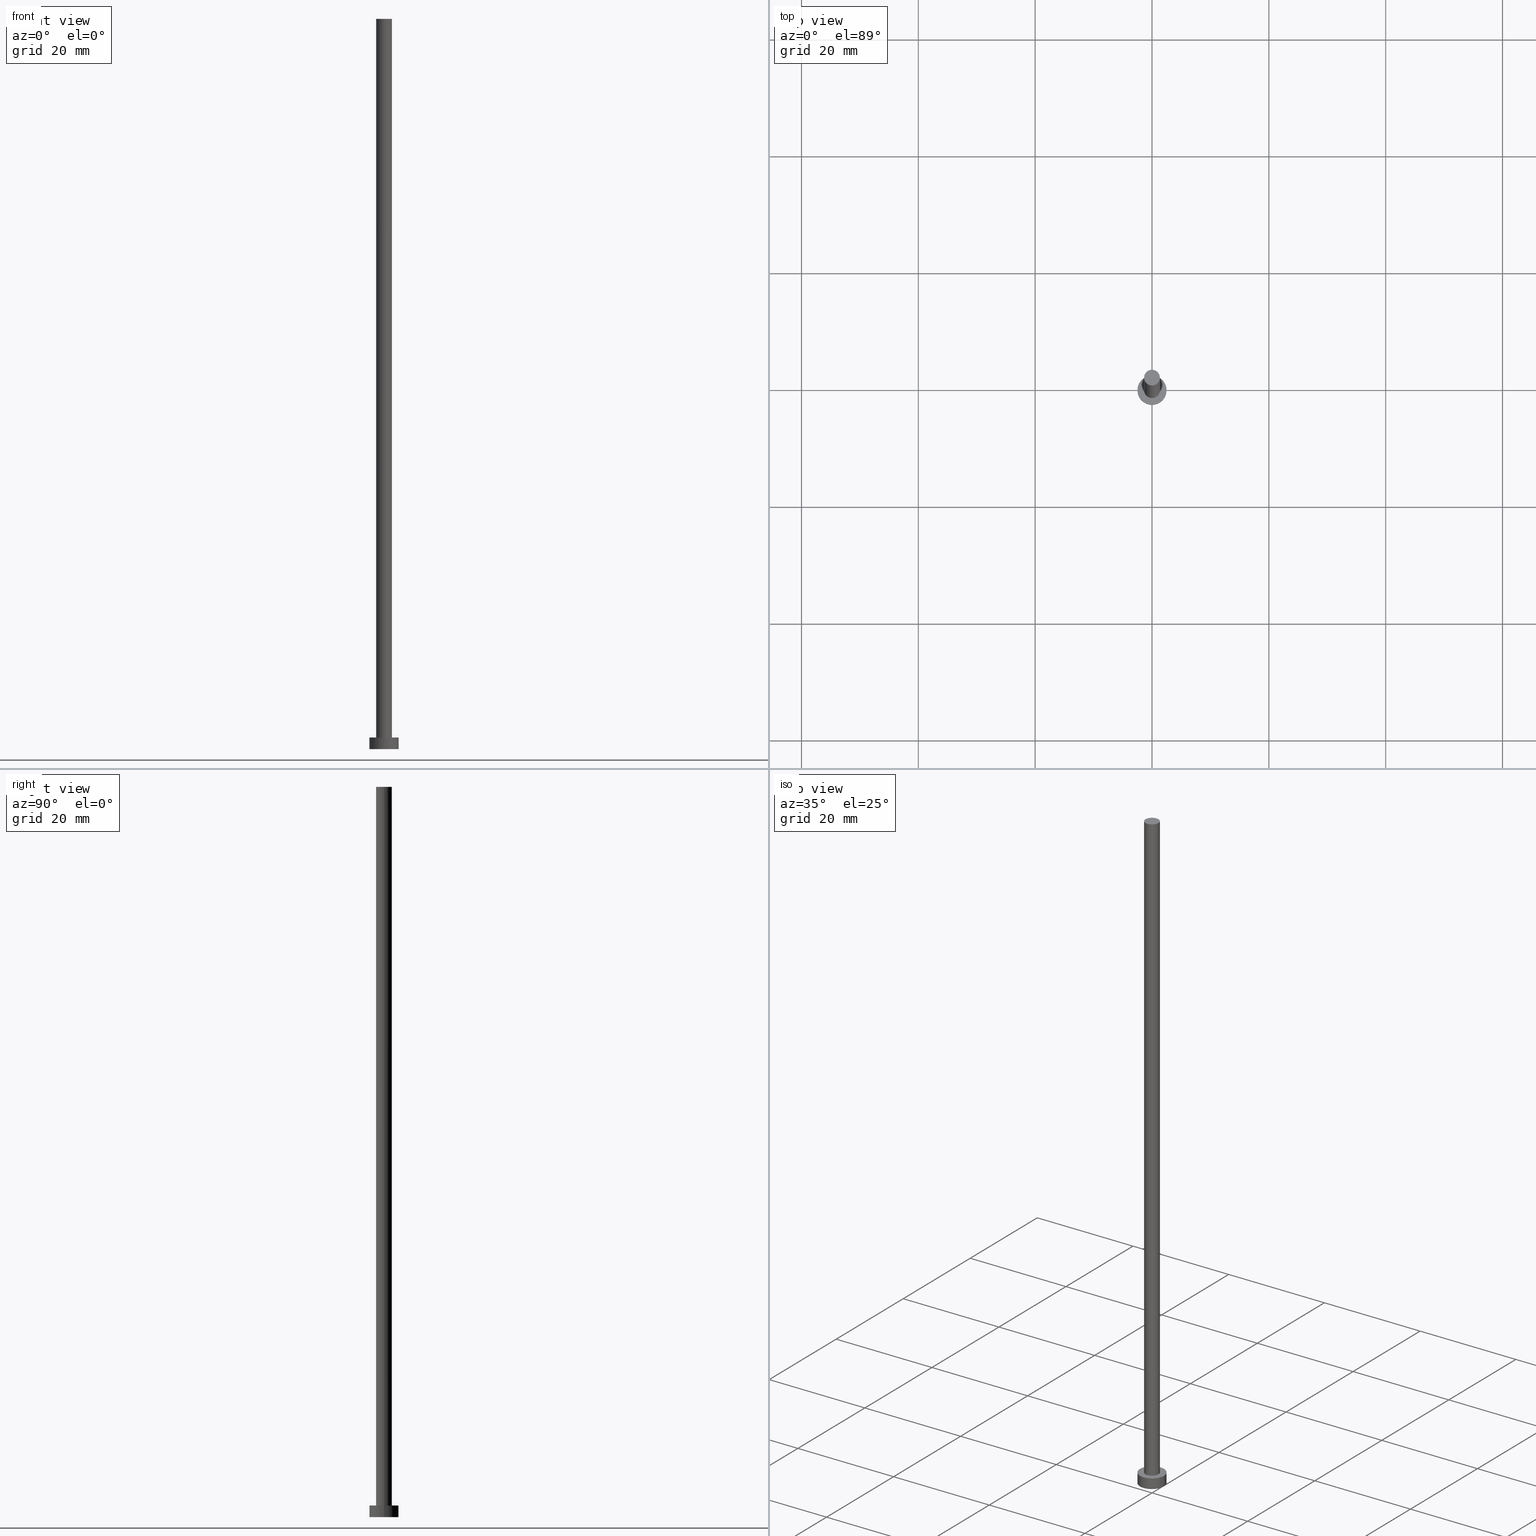
[diagram: canonical four-view strip — front | top / right | iso, engineering-drawing reading convention]
A machine part, canonical four-view strip (front | top / right | iso — engineering-drawing reading convention). The complete STEP part file that produces these views, byte-faithful:
ISO-10303-21;
HEADER;
FILE_DESCRIPTION (( 'STEP AP203' ),
    '1' );
FILE_NAME ('ba89.STEP',
    '2026-02-06T12:31:27',
    ( '' ),
    ( '' ),
    'SwSTEP 2.0',
    'SolidWorks 2019',
    '' );
FILE_SCHEMA (( 'CONFIG_CONTROL_DESIGN' ));
ENDSEC;

DATA;
#1 = VERTEX_POINT ( 'NONE', #43 ) ;
#2 = PRODUCT_DEFINITION_SHAPE ( 'NONE', 'NONE',  #32 ) ;
#3 = PERSON_AND_ORGANIZATION ( #208, #142 ) ;
#4 = CC_DESIGN_PERSON_AND_ORGANIZATION_ASSIGNMENT ( #198, #155, ( #232 ) ) ;
#5 = CYLINDRICAL_SURFACE ( 'NONE', #91, 2.500000000000000000 ) ;
#6 = LOCAL_TIME ( 13, 31, 27.00000000000000000, #52 ) ;
#7 = ORIENTED_EDGE ( 'NONE', *, *, #84, .F. ) ;
#8 = DIRECTION ( 'NONE',  ( 1.000000000000000000, 0.000000000000000000, -0.000000000000000000 ) ) ;
#9 = ORIENTED_EDGE ( 'NONE', *, *, #100, .F. ) ;
#10 = ADVANCED_FACE ( 'NONE', ( #240 ), #44, .F. ) ;
#11 = DIRECTION ( 'NONE',  ( -0.000000000000000000, -0.000000000000000000, -1.000000000000000000 ) ) ;
#12 = APPROVAL_DATE_TIME ( #90, #157 ) ;
#13 = MECHANICAL_CONTEXT ( 'NONE', #128, 'mechanical' ) ;
#14 = DIRECTION ( 'NONE',  ( -1.000000000000000000, 0.000000000000000000, 0.000000000000000000 ) ) ;
#15 =( LENGTH_UNIT ( ) NAMED_UNIT ( * ) SI_UNIT ( .MILLI., .METRE. ) );
#16 = DIRECTION ( 'NONE',  ( -1.000000000000000000, 0.000000000000000000, 0.000000000000000000 ) ) ;
#17 = FACE_OUTER_BOUND ( 'NONE', #89, .T. ) ;
#18 = CARTESIAN_POINT ( 'NONE',  ( 0.000000000000000000, 0.000000000000000000, 2.000000000000000000 ) ) ;
#19 = CARTESIAN_POINT ( 'NONE',  ( -2.500000000000000000, 0.000000000000000000, 0.000000000000000000 ) ) ;
#20 = MANIFOLD_SOLID_BREP ( 'P�idat vysunut�m3', #121 ) ;
#21 = PRODUCT ( 'ba89', 'ba89', '', ( #13 ) ) ;
#22 = EDGE_LOOP ( 'NONE', ( #63, #143 ) ) ;
#23 = AXIS2_PLACEMENT_3D ( 'NONE', #192, #116, #16 ) ;
#24 = CC_DESIGN_APPROVAL ( #117, ( #57 ) ) ;
#25 = DATE_AND_TIME ( #178, #47 ) ;
#26 = DIRECTION ( 'NONE',  ( 1.000000000000000000, 0.000000000000000000, 0.000000000000000000 ) ) ;
#27 = ORIENTED_EDGE ( 'NONE', *, *, #205, .F. ) ;
#28 = AXIS2_PLACEMENT_3D ( 'NONE', #58, #98, #163 ) ;
#29 = DIRECTION ( 'NONE',  ( 1.000000000000000000, 0.000000000000000000, 0.000000000000000000 ) ) ;
#30 = DIRECTION ( 'NONE',  ( -0.000000000000000000, -0.000000000000000000, -1.000000000000000000 ) ) ;
#31 = DIRECTION ( 'NONE',  ( 1.000000000000000000, 0.000000000000000000, 0.000000000000000000 ) ) ;
#32 = PRODUCT_DEFINITION ( 'NEZN�M�', '', #57, #60 ) ;
#33 = PERSON_AND_ORGANIZATION ( #208, #142 ) ;
#34 = FACE_BOUND ( 'NONE', #213, .T. ) ;
#35 = FACE_OUTER_BOUND ( 'NONE', #102, .T. ) ;
#36 = CARTESIAN_POINT ( 'NONE',  ( 0.000000000000000000, 0.000000000000000000, 125.0000000000000000 ) ) ;
#37 = EDGE_CURVE ( 'NONE', #103, #243, #79, .T. ) ;
#38 = APPLICATION_CONTEXT ( 'configuration controlled 3d designs of mechanical parts and assemblies' ) ;
#39 = APPROVAL_DATE_TIME ( #177, #117 ) ;
#40 = EDGE_LOOP ( 'NONE', ( #49, #241, #182, #137 ) ) ;
#41 = DATE_TIME_ROLE ( 'classification_date' ) ;
#42 = AXIS2_PLACEMENT_3D ( 'NONE', #124, #70, #29 ) ;
#43 = CARTESIAN_POINT ( 'NONE',  ( -2.500000000000000000, 0.000000000000000000, 2.000000000000000000 ) ) ;
#44 = PLANE ( 'NONE',  #249 ) ;
#45 = APPROVAL ( #115, 'NEUR�EN�' ) ;
#46 = AXIS2_PLACEMENT_3D ( 'NONE', #131, #76, #97 ) ;
#47 = LOCAL_TIME ( 13, 31, 27.00000000000000000, #140 ) ;
#48 = CARTESIAN_POINT ( 'NONE',  ( -1.350000000000000089, 0.000000000000000000, 125.0000000000000000 ) ) ;
#49 = ORIENTED_EDGE ( 'NONE', *, *, #247, .F. ) ;
#50 = LINE ( 'NONE', #144, #203 ) ;
#51 = DIRECTION ( 'NONE',  ( -1.000000000000000000, 0.000000000000000000, 0.000000000000000000 ) ) ;
#52 = COORDINATED_UNIVERSAL_TIME_OFFSET ( 1, 0, .AHEAD. ) ;
#53 = CIRCLE ( 'NONE', #132, 1.350000000000000089 ) ;
#54 = CARTESIAN_POINT ( 'NONE',  ( -1.350000000000000089, 0.000000000000000000, 2.000000000000000000 ) ) ;
#55 = CYLINDRICAL_SURFACE ( 'NONE', #231, 1.350000000000000089 ) ;
#56 = EDGE_CURVE ( 'NONE', #197, #199, #145, .T. ) ;
#57 = PRODUCT_DEFINITION_FORMATION_WITH_SPECIFIED_SOURCE ( 'LIBOVOLN�', '', #21, .NOT_KNOWN. ) ;
#58 = CARTESIAN_POINT ( 'NONE',  ( 0.000000000000000000, 0.000000000000000000, 125.0000000000000000 ) ) ;
#59 = APPROVAL_DATE_TIME ( #210, #45 ) ;
#60 = DESIGN_CONTEXT ( 'detailed design', #38, 'design' ) ;
#61 = ORIENTED_EDGE ( 'NONE', *, *, #37, .F. ) ;
#62 = COORDINATED_UNIVERSAL_TIME_OFFSET ( 1, 0, .AHEAD. ) ;
#63 = ORIENTED_EDGE ( 'NONE', *, *, #170, .T. ) ;
#64 = EDGE_CURVE ( 'NONE', #199, #67, #227, .T. ) ;
#65 = PERSON_AND_ORGANIZATION ( #208, #142 ) ;
#66 = ADVANCED_FACE ( 'NONE', ( #126 ), #5, .T. ) ;
#67 = VERTEX_POINT ( 'NONE', #139 ) ;
#68 = CARTESIAN_POINT ( 'NONE',  ( 2.500000000000000000, 3.061616997868383141E-16, 2.000000000000000000 ) ) ;
#69 = ORIENTED_EDGE ( 'NONE', *, *, #179, .T. ) ;
#70 = DIRECTION ( 'NONE',  ( 0.000000000000000000, 0.000000000000000000, 1.000000000000000000 ) ) ;
#71 = APPLICATION_PROTOCOL_DEFINITION ( 'international standard', 'config_control_design', 1994, #128 ) ;
#72 = DIRECTION ( 'NONE',  ( 0.000000000000000000, 0.000000000000000000, 1.000000000000000000 ) ) ;
#73 = CARTESIAN_POINT ( 'NONE',  ( 0.000000000000000000, 0.000000000000000000, 0.000000000000000000 ) ) ;
#74 = VECTOR ( 'NONE', #222, 1000.000000000000000 ) ;
#75 = CC_DESIGN_PERSON_AND_ORGANIZATION_ASSIGNMENT ( #3, #214, ( #57 ) ) ;
#76 = DIRECTION ( 'NONE',  ( 0.000000000000000000, 0.000000000000000000, 1.000000000000000000 ) ) ;
#77 = FACE_OUTER_BOUND ( 'NONE', #223, .T. ) ;
#78 = COORDINATED_UNIVERSAL_TIME_OFFSET ( 1, 0, .AHEAD. ) ;
#79 = CIRCLE ( 'NONE', #42, 2.500000000000000000 ) ;
#80 = LOCAL_TIME ( 13, 31, 27.00000000000000000, #62 ) ;
#81 = AXIS2_PLACEMENT_3D ( 'NONE', #156, #184, #26 ) ;
#82 = AXIS2_PLACEMENT_3D ( 'NONE', #73, #224, #148 ) ;
#83 = SECURITY_CLASSIFICATION_LEVEL ( 'unclassified' ) ;
#84 = EDGE_CURVE ( 'NONE', #1, #239, #185, .T. ) ;
#85 = PERSON_AND_ORGANIZATION ( #208, #142 ) ;
#86 = AXIS2_PLACEMENT_3D ( 'NONE', #114, #191, #169 ) ;
#87 = ORIENTED_EDGE ( 'NONE', *, *, #168, .F. ) ;
#88 = CARTESIAN_POINT ( 'NONE',  ( 2.500000000000000000, 3.061616997868383141E-16, 2.000000000000000000 ) ) ;
#89 = EDGE_LOOP ( 'NONE', ( #200, #69 ) ) ;
#90 = DATE_AND_TIME ( #129, #6 ) ;
#91 = AXIS2_PLACEMENT_3D ( 'NONE', #202, #30, #51 ) ;
#92 = ADVANCED_FACE ( 'NONE', ( #35 ), #133, .T. ) ;
#93 = DIRECTION ( 'NONE',  ( -0.000000000000000000, -0.000000000000000000, -1.000000000000000000 ) ) ;
#94 =( NAMED_UNIT ( * ) PLANE_ANGLE_UNIT ( ) SI_UNIT ( $, .RADIAN. ) );
#95 = FACE_OUTER_BOUND ( 'NONE', #40, .T. ) ;
#96 = FACE_OUTER_BOUND ( 'NONE', #22, .T. ) ;
#97 = DIRECTION ( 'NONE',  ( 1.000000000000000000, 0.000000000000000000, 0.000000000000000000 ) ) ;
#98 = DIRECTION ( 'NONE',  ( 0.000000000000000000, 0.000000000000000000, 1.000000000000000000 ) ) ;
#99 = COORDINATED_UNIVERSAL_TIME_OFFSET ( 1, 0, .AHEAD. ) ;
#100 = EDGE_CURVE ( 'NONE', #67, #199, #53, .T. ) ;
#101 = CC_DESIGN_DATE_AND_TIME_ASSIGNMENT ( #25, #195, ( #32 ) ) ;
#102 = EDGE_LOOP ( 'NONE', ( #27, #7, #175, #235 ) ) ;
#103 = VERTEX_POINT ( 'NONE', #19 ) ;
#104 = APPROVAL_PERSON_ORGANIZATION ( #120, #45, #252 ) ;
#105 = ORIENTED_EDGE ( 'NONE', *, *, #136, .F. ) ;
#106 = VERTEX_POINT ( 'NONE', #211 ) ;
#107 =( NAMED_UNIT ( * ) SI_UNIT ( $, .STERADIAN. ) SOLID_ANGLE_UNIT ( ) );
#108 = APPROVAL_STATUS ( 'not_yet_approved' ) ;
#109 = AXIS2_PLACEMENT_3D ( 'NONE', #246, #72, #31 ) ;
#110 = PLANE ( 'NONE',  #228 ) ;
#111 = APPROVAL_PERSON_ORGANIZATION ( #85, #117, #219 ) ;
#112 = CALENDAR_DATE ( 2026, 6, 2 ) ;
#113 = CARTESIAN_POINT ( 'NONE',  ( 2.500000000000000000, 3.061616997868383141E-16, 0.000000000000000000 ) ) ;
#114 = CARTESIAN_POINT ( 'NONE',  ( 0.000000000000000000, 0.000000000000000000, 125.0000000000000000 ) ) ;
#115 = APPROVAL_STATUS ( 'not_yet_approved' ) ;
#116 = DIRECTION ( 'NONE',  ( -0.000000000000000000, -0.000000000000000000, -1.000000000000000000 ) ) ;
#117 = APPROVAL ( #236, 'NEUR�EN�' ) ;
#118 = ORIENTED_EDGE ( 'NONE', *, *, #64, .F. ) ;
#119 = PERSON_AND_ORGANIZATION_ROLE ( 'design_supplier' ) ;
#120 = PERSON_AND_ORGANIZATION ( #208, #142 ) ;
#121 = CLOSED_SHELL ( 'NONE', ( #147, #66, #92, #212, #10, #135, #255 ) ) ;
#122 = LOCAL_TIME ( 13, 31, 27.00000000000000000, #99 ) ;
#123 = ORIENTED_EDGE ( 'NONE', *, *, #225, .F. ) ;
#124 = CARTESIAN_POINT ( 'NONE',  ( 0.000000000000000000, 0.000000000000000000, 0.000000000000000000 ) ) ;
#125 = DIRECTION ( 'NONE',  ( -0.000000000000000000, -0.000000000000000000, -1.000000000000000000 ) ) ;
#126 = FACE_OUTER_BOUND ( 'NONE', #174, .T. ) ;
#127 = DIRECTION ( 'NONE',  ( 0.000000000000000000, 0.000000000000000000, 1.000000000000000000 ) ) ;
#128 = APPLICATION_CONTEXT ( 'configuration controlled 3d designs of mechanical parts and assemblies' ) ;
#129 = CALENDAR_DATE ( 2026, 6, 2 ) ;
#130 = ADVANCED_BREP_SHAPE_REPRESENTATION ( 'ba89', ( #20, #82 ), #204 ) ;
#131 = CARTESIAN_POINT ( 'NONE',  ( 0.000000000000000000, 0.000000000000000000, 125.0000000000000000 ) ) ;
#132 = AXIS2_PLACEMENT_3D ( 'NONE', #18, #151, #209 ) ;
#133 = CYLINDRICAL_SURFACE ( 'NONE', #23, 2.500000000000000000 ) ;
#134 = APPROVAL_PERSON_ORGANIZATION ( #33, #157, #186 ) ;
#135 = ADVANCED_FACE ( 'NONE', ( #95 ), #55, .T. ) ;
#136 = EDGE_CURVE ( 'NONE', #1, #103, #164, .T. ) ;
#137 = ORIENTED_EDGE ( 'NONE', *, *, #64, .T. ) ;
#138 = CALENDAR_DATE ( 2026, 6, 2 ) ;
#139 = CARTESIAN_POINT ( 'NONE',  ( 1.350000000000000089, 1.653273178848926867E-16, 2.000000000000000000 ) ) ;
#140 = COORDINATED_UNIVERSAL_TIME_OFFSET ( 1, 0, .AHEAD. ) ;
#141 = EDGE_LOOP ( 'NONE', ( #61, #123 ) ) ;
#142 = ORGANIZATION ( 'NEUR�EN�', 'NEUR�EN�', '' ) ;
#143 = ORIENTED_EDGE ( 'NONE', *, *, #168, .T. ) ;
#144 = CARTESIAN_POINT ( 'NONE',  ( 1.350000000000000089, 1.653273178848926867E-16, 125.0000000000000000 ) ) ;
#145 = LINE ( 'NONE', #48, #74 ) ;
#146 = APPLICATION_PROTOCOL_DEFINITION ( 'international standard', 'config_control_design', 1994, #38 ) ;
#147 = ADVANCED_FACE ( 'NONE', ( #77 ), #230, .T. ) ;
#148 = DIRECTION ( 'NONE',  ( 1.000000000000000000, 0.000000000000000000, 0.000000000000000000 ) ) ;
#149 = CARTESIAN_POINT ( 'NONE',  ( 0.000000000000000000, 0.000000000000000000, 2.000000000000000000 ) ) ;
#150 = DIRECTION ( 'NONE',  ( 0.000000000000000000, 0.000000000000000000, 1.000000000000000000 ) ) ;
#151 = DIRECTION ( 'NONE',  ( 0.000000000000000000, 0.000000000000000000, 1.000000000000000000 ) ) ;
#152 = CARTESIAN_POINT ( 'NONE',  ( -1.350000000000000089, 0.000000000000000000, 125.0000000000000000 ) ) ;
#153 = CIRCLE ( 'NONE', #28, 1.350000000000000089 ) ;
#154 = ORIENTED_EDGE ( 'NONE', *, *, #225, .T. ) ;
#155 = PERSON_AND_ORGANIZATION_ROLE ( 'classification_officer' ) ;
#156 = CARTESIAN_POINT ( 'NONE',  ( 0.000000000000000000, 0.000000000000000000, 2.000000000000000000 ) ) ;
#157 = APPROVAL ( #108, 'NEUR�EN�' ) ;
#158 = ORIENTED_EDGE ( 'NONE', *, *, #205, .T. ) ;
#159 = CIRCLE ( 'NONE', #109, 2.500000000000000000 ) ;
#160 = CARTESIAN_POINT ( 'NONE',  ( 0.000000000000000000, 0.000000000000000000, 2.000000000000000000 ) ) ;
#161 = PERSON_AND_ORGANIZATION_ROLE ( 'design_owner' ) ;
#162 = CIRCLE ( 'NONE', #217, 2.500000000000000000 ) ;
#163 = DIRECTION ( 'NONE',  ( 1.000000000000000000, 0.000000000000000000, 0.000000000000000000 ) ) ;
#164 = LINE ( 'NONE', #251, #234 ) ;
#165 = SHAPE_DEFINITION_REPRESENTATION ( #2, #130 ) ;
#166 = CC_DESIGN_DATE_AND_TIME_ASSIGNMENT ( #216, #41, ( #232 ) ) ;
#167 = CARTESIAN_POINT ( 'NONE',  ( 0.000000000000000000, 0.000000000000000000, 125.0000000000000000 ) ) ;
#168 = EDGE_CURVE ( 'NONE', #106, #197, #153, .T. ) ;
#169 = DIRECTION ( 'NONE',  ( -1.000000000000000000, 0.000000000000000000, 0.000000000000000000 ) ) ;
#170 = EDGE_CURVE ( 'NONE', #197, #106, #171, .T. ) ;
#171 = CIRCLE ( 'NONE', #46, 1.350000000000000089 ) ;
#172 = DIRECTION ( 'NONE',  ( 0.000000000000000000, 0.000000000000000000, 1.000000000000000000 ) ) ;
#173 = LOCAL_TIME ( 13, 31, 27.00000000000000000, #78 ) ;
#174 = EDGE_LOOP ( 'NONE', ( #244, #158, #154, #105 ) ) ;
#175 = ORIENTED_EDGE ( 'NONE', *, *, #136, .T. ) ;
#176 = CC_DESIGN_SECURITY_CLASSIFICATION ( #232, ( #57 ) ) ;
#177 = DATE_AND_TIME ( #238, #122 ) ;
#178 = CALENDAR_DATE ( 2026, 6, 2 ) ;
#179 = EDGE_CURVE ( 'NONE', #239, #1, #162, .T. ) ;
#180 = DIRECTION ( 'NONE',  ( 1.000000000000000000, 0.000000000000000000, -0.000000000000000000 ) ) ;
#181 = DIRECTION ( 'NONE',  ( 0.000000000000000000, 0.000000000000000000, 1.000000000000000000 ) ) ;
#182 = ORIENTED_EDGE ( 'NONE', *, *, #56, .T. ) ;
#183 = DIRECTION ( 'NONE',  ( 1.000000000000000000, 0.000000000000000000, -0.000000000000000000 ) ) ;
#184 = DIRECTION ( 'NONE',  ( 0.000000000000000000, 0.000000000000000000, 1.000000000000000000 ) ) ;
#185 = CIRCLE ( 'NONE', #245, 2.500000000000000000 ) ;
#186 = APPROVAL_ROLE ( '' ) ;
#187 = PERSON_AND_ORGANIZATION_ROLE ( 'creator' ) ;
#188 = CC_DESIGN_PERSON_AND_ORGANIZATION_ASSIGNMENT ( #65, #119, ( #57 ) ) ;
#189 = DIRECTION ( 'NONE',  ( -0.000000000000000000, -0.000000000000000000, -1.000000000000000000 ) ) ;
#190 = VECTOR ( 'NONE', #11, 1000.000000000000000 ) ;
#191 = DIRECTION ( 'NONE',  ( -0.000000000000000000, -0.000000000000000000, -1.000000000000000000 ) ) ;
#192 = CARTESIAN_POINT ( 'NONE',  ( 0.000000000000000000, 0.000000000000000000, 2.000000000000000000 ) ) ;
#193 = CC_DESIGN_APPROVAL ( #157, ( #32 ) ) ;
#194 = ORIENTED_EDGE ( 'NONE', *, *, #56, .F. ) ;
#195 = DATE_TIME_ROLE ( 'creation_date' ) ;
#196 = UNCERTAINTY_MEASURE_WITH_UNIT (LENGTH_MEASURE( 1.000000000000000082E-05 ), #15, 'distance_accuracy_value', 'NONE');
#197 = VERTEX_POINT ( 'NONE', #152 ) ;
#198 = PERSON_AND_ORGANIZATION ( #208, #142 ) ;
#199 = VERTEX_POINT ( 'NONE', #54 ) ;
#200 = ORIENTED_EDGE ( 'NONE', *, *, #84, .T. ) ;
#201 = PLANE ( 'NONE',  #254 ) ;
#202 = CARTESIAN_POINT ( 'NONE',  ( 0.000000000000000000, 0.000000000000000000, 2.000000000000000000 ) ) ;
#203 = VECTOR ( 'NONE', #125, 1000.000000000000000 ) ;
#204 =( GEOMETRIC_REPRESENTATION_CONTEXT ( 3 ) GLOBAL_UNCERTAINTY_ASSIGNED_CONTEXT ( ( #196 ) ) GLOBAL_UNIT_ASSIGNED_CONTEXT ( ( #15, #94, #107 ) ) REPRESENTATION_CONTEXT ( 'NONE', 'WORKASPACE' ) );
#205 = EDGE_CURVE ( 'NONE', #239, #243, #207, .T. ) ;
#206 = CC_DESIGN_PERSON_AND_ORGANIZATION_ASSIGNMENT ( #226, #161, ( #21 ) ) ;
#207 = LINE ( 'NONE', #68, #190 ) ;
#208 = PERSON ( 'NEUR�EN�', 'NEUR�EN�', 'NEUR�EN�', ('NEUR�EN�'), ('NEUR�EN�'), ('NEUR�EN�') ) ;
#209 = DIRECTION ( 'NONE',  ( 1.000000000000000000, 0.000000000000000000, 0.000000000000000000 ) ) ;
#210 = DATE_AND_TIME ( #112, #173 ) ;
#211 = CARTESIAN_POINT ( 'NONE',  ( 1.350000000000000089, 1.653273178848926867E-16, 125.0000000000000000 ) ) ;
#212 = ADVANCED_FACE ( 'NONE', ( #34, #17 ), #110, .T. ) ;
#213 = EDGE_LOOP ( 'NONE', ( #118, #9 ) ) ;
#214 = PERSON_AND_ORGANIZATION_ROLE ( 'creator' ) ;
#215 = PRODUCT_RELATED_PRODUCT_CATEGORY ( 'detail', '', ( #21 ) ) ;
#216 = DATE_AND_TIME ( #138, #80 ) ;
#217 = AXIS2_PLACEMENT_3D ( 'NONE', #149, #172, #229 ) ;
#218 = CARTESIAN_POINT ( 'NONE',  ( 0.000000000000000000, 0.000000000000000000, 0.000000000000000000 ) ) ;
#219 = APPROVAL_ROLE ( '' ) ;
#220 = DIRECTION ( 'NONE',  ( 0.000000000000000000, 0.000000000000000000, 1.000000000000000000 ) ) ;
#221 = ORIENTED_EDGE ( 'NONE', *, *, #247, .T. ) ;
#222 = DIRECTION ( 'NONE',  ( -0.000000000000000000, -0.000000000000000000, -1.000000000000000000 ) ) ;
#223 = EDGE_LOOP ( 'NONE', ( #87, #221, #242, #194 ) ) ;
#224 = DIRECTION ( 'NONE',  ( 0.000000000000000000, 0.000000000000000000, 1.000000000000000000 ) ) ;
#225 = EDGE_CURVE ( 'NONE', #243, #103, #159, .T. ) ;
#226 = PERSON_AND_ORGANIZATION ( #208, #142 ) ;
#227 = CIRCLE ( 'NONE', #81, 1.350000000000000089 ) ;
#228 = AXIS2_PLACEMENT_3D ( 'NONE', #160, #127, #8 ) ;
#229 = DIRECTION ( 'NONE',  ( 1.000000000000000000, 0.000000000000000000, 0.000000000000000000 ) ) ;
#230 = CYLINDRICAL_SURFACE ( 'NONE', #86, 1.350000000000000089 ) ;
#231 = AXIS2_PLACEMENT_3D ( 'NONE', #36, #189, #14 ) ;
#232 = SECURITY_CLASSIFICATION ( '', '', #83 ) ;
#233 = DIRECTION ( 'NONE',  ( 1.000000000000000000, 0.000000000000000000, 0.000000000000000000 ) ) ;
#234 = VECTOR ( 'NONE', #93, 1000.000000000000000 ) ;
#235 = ORIENTED_EDGE ( 'NONE', *, *, #37, .T. ) ;
#236 = APPROVAL_STATUS ( 'not_yet_approved' ) ;
#237 = CC_DESIGN_PERSON_AND_ORGANIZATION_ASSIGNMENT ( #248, #187, ( #32 ) ) ;
#238 = CALENDAR_DATE ( 2026, 6, 2 ) ;
#239 = VERTEX_POINT ( 'NONE', #88 ) ;
#240 = FACE_OUTER_BOUND ( 'NONE', #141, .T. ) ;
#241 = ORIENTED_EDGE ( 'NONE', *, *, #170, .F. ) ;
#242 = ORIENTED_EDGE ( 'NONE', *, *, #100, .T. ) ;
#243 = VERTEX_POINT ( 'NONE', #113 ) ;
#244 = ORIENTED_EDGE ( 'NONE', *, *, #179, .F. ) ;
#245 = AXIS2_PLACEMENT_3D ( 'NONE', #253, #150, #233 ) ;
#246 = CARTESIAN_POINT ( 'NONE',  ( 0.000000000000000000, 0.000000000000000000, 0.000000000000000000 ) ) ;
#247 = EDGE_CURVE ( 'NONE', #106, #67, #50, .T. ) ;
#248 = PERSON_AND_ORGANIZATION ( #208, #142 ) ;
#249 = AXIS2_PLACEMENT_3D ( 'NONE', #218, #220, #180 ) ;
#250 = CC_DESIGN_APPROVAL ( #45, ( #232 ) ) ;
#251 = CARTESIAN_POINT ( 'NONE',  ( -2.500000000000000000, 0.000000000000000000, 2.000000000000000000 ) ) ;
#252 = APPROVAL_ROLE ( '' ) ;
#253 = CARTESIAN_POINT ( 'NONE',  ( 0.000000000000000000, 0.000000000000000000, 2.000000000000000000 ) ) ;
#254 = AXIS2_PLACEMENT_3D ( 'NONE', #167, #181, #183 ) ;
#255 = ADVANCED_FACE ( 'NONE', ( #96 ), #201, .T. ) ;
ENDSEC;
END-ISO-10303-21;
